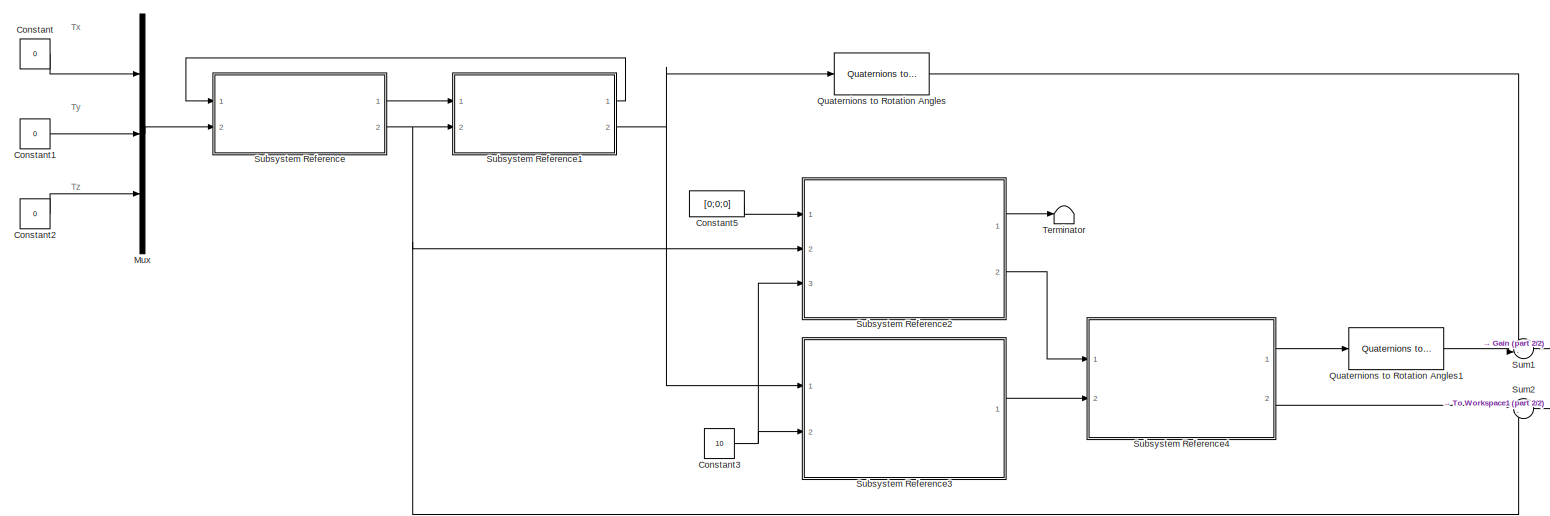
[diagram: root canvas - part 1/2, most of the canvas]
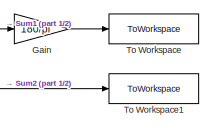
[diagram: root canvas - part 2/2, bottom right region]
MODEL slx_b63e75a2d435
KIND model
CONFIG AbsTol = auto
CONFIG EnableMultiTasking = off
CONFIG FixedStep = auto
CONFIG MaxStep = auto
CONFIG MinStep = auto
CONFIG RelTol = 1e-3
CONFIG SampleTimeConstraint = Unconstrained
CONFIG SolverName = VariableStepAuto
CONFIG StartTime = 0.0
CONFIG StopTime = 1000
BLOCK [Constant] Constant
  Value = 0
BLOCK [Constant] Constant1
  Value = 0
BLOCK [Constant] Constant2
  Value = 0
BLOCK [Constant] Constant3
  Value = 10
BLOCK [Constant] Constant5
  Value = [0;0;0]
BLOCK [Gain] Gain
  Gain = 180/pi
BLOCK [Mux] Mux
  DisplayOption = bar
  Inputs = 3
  Ports = [3, 1]
BLOCK [Reference] Quaternions to Rotation Angles  REF=sharedtransform/Quaternions to Rotation Angles
  AttributesFormatString = Rotation Order: %<rotationOrder>
  Ports = [1, 1]
  SourceBlock = sharedtransform/Quaternions to Rotation Angles
  SourceProductBaseCode = AE,PW,DR,MT,UV,VE
  SourceType = Quat2Ang
BLOCK [Reference] Quaternions to Rotation Angles1  REF=sharedtransform/Quaternions to Rotation Angles
  AttributesFormatString = Rotation Order: %<rotationOrder>
  Ports = [1, 1]
  SourceBlock = sharedtransform/Quaternions to Rotation Angles
  SourceProductBaseCode = AE,PW,DR,MT,UV,VE
  SourceType = Quat2Ang
BLOCK [SubSystem] Subsystem Reference
  Ports = [2, 2]
  ReferencedSubsystem = Dynamics
  RequestExecContextInheritance = off
BLOCK [SubSystem] Subsystem Reference1
  Ports = [2, 2]
  ReferencedSubsystem = Kinematics
  RequestExecContextInheritance = off
BLOCK [SubSystem] Subsystem Reference2
  Ports = [3, 2]
  ReferencedSubsystem = IMU
  RequestExecContextInheritance = off
BLOCK [SubSystem] Subsystem Reference3
  Ports = [2, 1]
  ReferencedSubsystem = StarTracker
  RequestExecContextInheritance = off
BLOCK [SubSystem] Subsystem Reference4
  Ports = [2, 2]
  ReferencedSubsystem = NavigationSolution
  RequestExecContextInheritance = off
BLOCK [Sum] Sum1
  Inputs = +-|
  Ports = [2, 1]
BLOCK [Sum] Sum2
  Inputs = |-+
  Ports = [2, 1]
BLOCK [Terminator] Terminator
BLOCK [ToWorkspace] To Workspace
  FixptAsFi = on
  MaxDataPoints = inf
  Ports = [1]
  SampleTime = -1
  SaveFormat = Timeseries
  VariableName = error_euler
BLOCK [ToWorkspace] To Workspace1
  FixptAsFi = on
  MaxDataPoints = inf
  Ports = [1]
  SampleTime = -1
  SaveFormat = Timeseries
  VariableName = error_omega
ANNOTATION (root): Tx
ANNOTATION (root): Ty
ANNOTATION (root): Tz
LINE Constant1:1 -> Mux:2
LINE Constant2:1 -> Mux:3
NET Constant3:1 -> Subsystem Reference2:3, Subsystem Reference3:2
LINE Constant5:1 -> Subsystem Reference2:1
LINE Constant:1 -> Mux:1
LINE Gain:1 -> To Workspace:1
LINE Mux:1 -> Subsystem Reference:2
LINE Quaternions to Rotation Angles1:1 -> Sum1:2
LINE Quaternions to Rotation Angles:1 -> Sum1:1
LINE Subsystem Reference1:1 -> Subsystem Reference:1
NET Subsystem Reference1:2 -> Quaternions to Rotation Angles:1, Subsystem Reference3:1
LINE Subsystem Reference2:1 -> Terminator:1
LINE Subsystem Reference2:2 -> Subsystem Reference4:1
LINE Subsystem Reference3:1 -> Subsystem Reference4:2
LINE Subsystem Reference4:1 -> Quaternions to Rotation Angles1:1
LINE Subsystem Reference4:2 -> Sum2:1
LINE Subsystem Reference:1 -> Subsystem Reference1:1
NET Subsystem Reference:2 -> Subsystem Reference1:2, Subsystem Reference2:2, Sum2:2
LINE Sum1:1 -> Gain:1
LINE Sum2:1 -> To Workspace1:1
note: NET lines group one-source signal fan-out (src -> all destinations, sorted); 1:1 wires keep LINE
